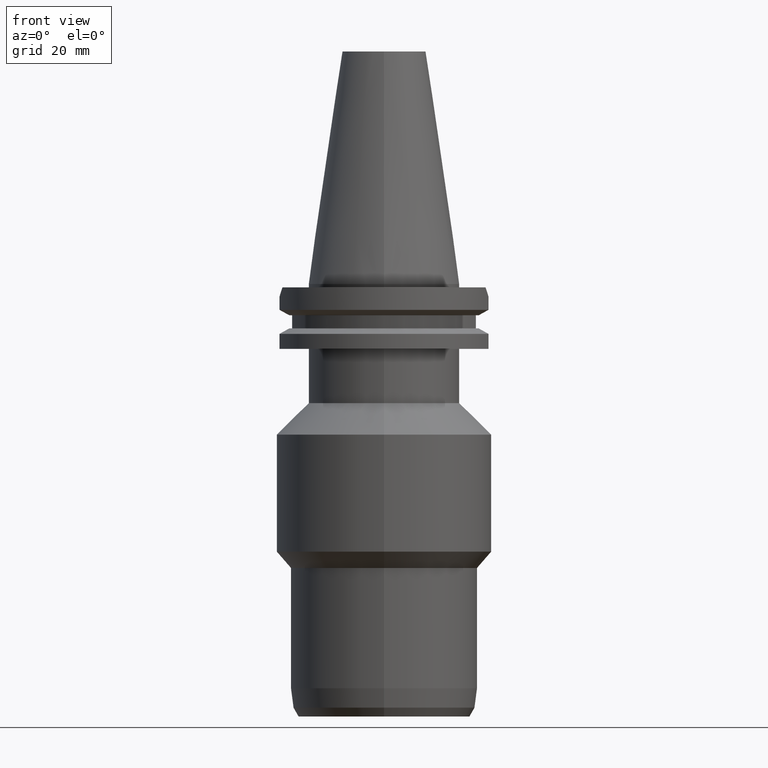
[diagram: clean part render]
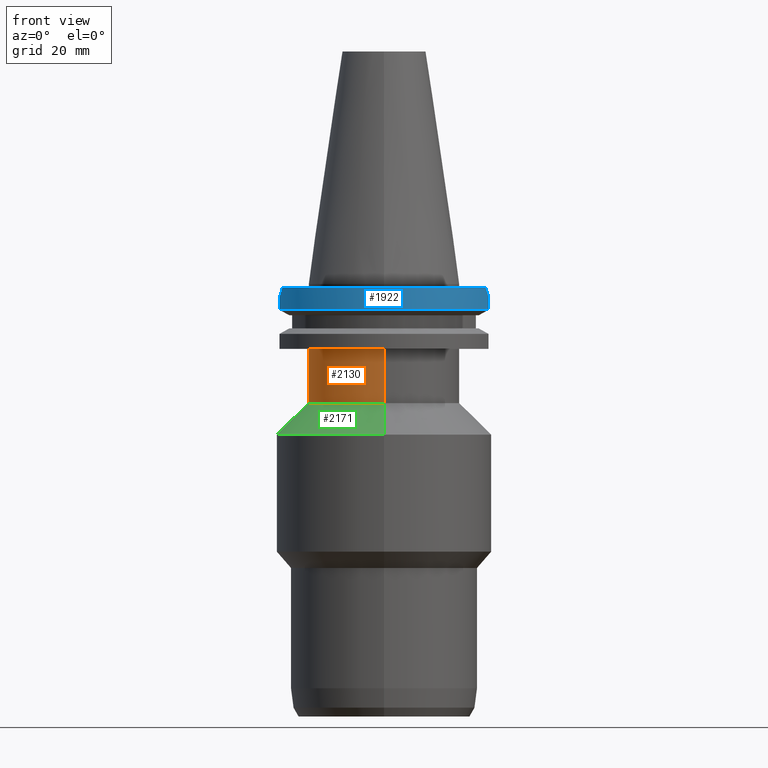
[diagram: same view with three faces highlighted in distinct colors, each labeled with its STEP entity id]
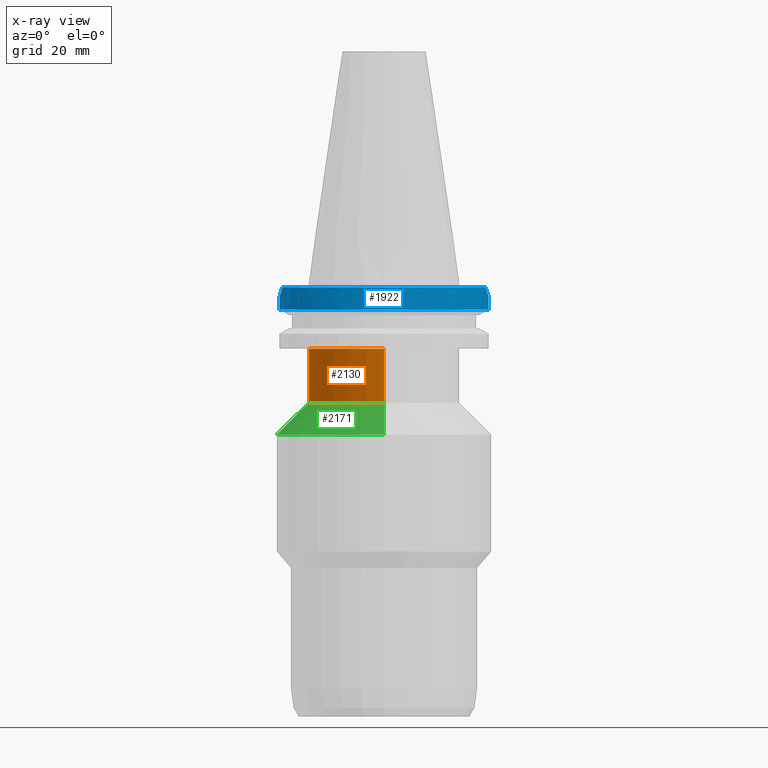
[diagram: x-ray of the same camera — body ghosted, the three highlighted faces saturated]
A machine part, front view with three faces highlighted in distinct colors.
The next image is the same camera in x-ray (body ghosted, the three faces saturated) — at least one of them is partly hidden behind the body in this view.
Their STEP definitions:

[orange] entity #2130 — the highlighted cylindrical surface (partial cylindrical patch) has radius 22.225 mm, axis along (0, 0, -1).
#251=CARTESIAN_POINT('',(0.E0,2.180024383332E-14,-1.905E1));
#252=DIRECTION('',(0.E0,0.E0,-1.E0));
#253=DIRECTION('',(0.E0,-1.E0,0.E0));
#254=AXIS2_PLACEMENT_3D('',#251,#252,#253);
#848=DIRECTION('',(0.E0,0.E0,-1.E0));
#849=VECTOR('',#848,1.595E1);
#850=CARTESIAN_POINT('',(0.E0,-2.2225E1,-1.905E1));
#851=LINE('',#850,#849);
#855=DIRECTION('',(0.E0,0.E0,-1.E0));
#856=VECTOR('',#855,1.595E1);
#857=CARTESIAN_POINT('',(0.E0,2.2225E1,-1.905E1));
#858=LINE('',#857,#856);
#885=CARTESIAN_POINT('',(0.E0,0.E0,-3.5E1));
#886=DIRECTION('',(0.E0,0.E0,1.E0));
#887=DIRECTION('',(0.E0,1.E0,0.E0));
#888=AXIS2_PLACEMENT_3D('',#885,#886,#887);
#1374=CARTESIAN_POINT('',(0.E0,2.2225E1,-3.5E1));
#1375=VERTEX_POINT('',#1374);
#1376=CARTESIAN_POINT('',(0.E0,-2.2225E1,-3.5E1));
#1377=VERTEX_POINT('',#1376);
#1378=CARTESIAN_POINT('',(0.E0,2.2225E1,-1.905E1));
#1379=VERTEX_POINT('',#1378);
#1380=CARTESIAN_POINT('',(0.E0,-2.2225E1,-1.905E1));
#1381=VERTEX_POINT('',#1380);
#2116=CARTESIAN_POINT('',(0.E0,2.180024383332E-14,7.80125E1));
#2117=DIRECTION('',(0.E0,0.E0,-1.E0));
#2118=DIRECTION('',(0.E0,-1.E0,0.E0));
#2119=AXIS2_PLACEMENT_3D('',#2116,#2117,#2118);
#2120=CYLINDRICAL_SURFACE('',#2119,2.2225E1);
#2122=ORIENTED_EDGE('',*,*,#2121,.F.);
#2123=ORIENTED_EDGE('',*,*,#1667,.F.);
#2125=ORIENTED_EDGE('',*,*,#2124,.T.);
#2127=ORIENTED_EDGE('',*,*,#2126,.F.);
#2128=EDGE_LOOP('',(#2122,#2123,#2125,#2127));
#2129=FACE_OUTER_BOUND('',#2128,.F.);
#255=CIRCLE('',#254,2.2225E1);
#889=CIRCLE('',#888,2.2225E1);
#1667=EDGE_CURVE('',#1381,#1379,#255,.T.);
#2121=EDGE_CURVE('',#1379,#1375,#858,.T.);
#2124=EDGE_CURVE('',#1381,#1377,#851,.T.);
#2126=EDGE_CURVE('',#1375,#1377,#889,.T.);
#2130=ADVANCED_FACE('',(#2129),#2120,.T.);

[blue] entity #1922 — the highlighted cylindrical surface (partial cylindrical patch) has radius 31.75 mm, axis along (0, 0, -1).
#108=CARTESIAN_POINT('',(0.E0,2.180024383332E-14,-9.999999999999E-1));
#109=DIRECTION('',(0.E0,0.E0,-1.E0));
#110=DIRECTION('',(9.393382785306E-1,-3.429921259843E-1,0.E0));
#111=AXIS2_PLACEMENT_3D('',#108,#109,#110);
#116=CARTESIAN_POINT('',(0.E0,2.180024383332E-14,-9.999999999999E-1));
#117=DIRECTION('',(0.E0,0.E0,-1.E0));
#118=DIRECTION('',(0.E0,-1.E0,0.E0));
#119=AXIS2_PLACEMENT_3D('',#116,#117,#118);
#575=CARTESIAN_POINT('',(2.982399034335E1,-1.089E1,-1.000000000001E0));
#576=CARTESIAN_POINT('',(3.015017741992E1,-9.996685011754E0,-1.893314988246E0));
#577=CARTESIAN_POINT('',(3.043345108244E1,-9.096596073173E0,-2.793403926827E0));
#578=CARTESIAN_POINT('',(3.067550162589E1,-8.19E0,-3.7E0));
#583=DIRECTION('',(-4.149952334243E-8,-1.554361652636E-7,-1.E0));
#584=VECTOR('',#583,3.901327811715E0);
#585=CARTESIAN_POINT('',(3.067550162589E1,-8.19E0,-3.7E0));
#586=LINE('',#585,#584);
#590=DIRECTION('',(8.604053470649E-9,-3.222588451522E-8,1.E0));
#591=VECTOR('',#590,3.901334354445E0);
#592=CARTESIAN_POINT('',(-3.067550165946E1,-8.189999874276E0,
-7.601334354445E0));
#593=LINE('',#592,#591);
#597=CARTESIAN_POINT('',(-3.067550162589E1,-8.19E0,-3.7E0));
#598=CARTESIAN_POINT('',(-3.043345108244E1,-9.096596073173E0,
-2.793403926827E0));
#599=CARTESIAN_POINT('',(-3.015017741992E1,-9.996685011754E0,
-1.893314988246E0));
#600=CARTESIAN_POINT('',(-2.982399034335E1,-1.089E1,-1.000000000001E0));
#624=CARTESIAN_POINT('',(3.067550146399E1,-8.190000606407E0,-7.601327811715E0));
#674=CARTESIAN_POINT('',(0.E0,1.121722380079E-14,-7.601333230926E0));
#675=DIRECTION('',(0.E0,0.E0,1.E0));
#676=DIRECTION('',(-9.661575315241E-1,-2.579527559055E-1,0.E0));
#677=AXIS2_PLACEMENT_3D('',#674,#675,#676);
#682=CARTESIAN_POINT('',(0.E0,1.121722380079E-14,-7.601333230926E0));
#683=DIRECTION('',(0.E0,0.E0,1.E0));
#684=DIRECTION('',(0.E0,-1.E0,0.E0));
#685=AXIS2_PLACEMENT_3D('',#682,#683,#684);
#1419=VERTEX_POINT('',#624);
#1420=CARTESIAN_POINT('',(3.067550162589E1,-8.19E0,-3.7E0));
#1421=VERTEX_POINT('',#1420);
#1434=CARTESIAN_POINT('',(-3.067550162589E1,-8.19E0,-3.7E0));
#1435=VERTEX_POINT('',#1434);
#1436=CARTESIAN_POINT('',(-3.067550165946E1,-8.189999874276E0,
-7.601334354445E0));
#1437=VERTEX_POINT('',#1436);
#1488=CARTESIAN_POINT('',(0.E0,-3.175E1,-7.601333230926E0));
#1489=VERTEX_POINT('',#1488);
#1493=VERTEX_POINT('',#575);
#1494=VERTEX_POINT('',#600);
#1495=CARTESIAN_POINT('',(-1.432899828923E-14,-3.175E1,-9.999999999999E-1));
#1496=VERTEX_POINT('',#1495);
#1902=CARTESIAN_POINT('',(0.E0,2.180024383332E-14,7.80125E1));
#1903=DIRECTION('',(0.E0,0.E0,-1.E0));
#1904=DIRECTION('',(0.E0,-1.E0,0.E0));
#1905=AXIS2_PLACEMENT_3D('',#1902,#1903,#1904);
#1906=CYLINDRICAL_SURFACE('',#1905,3.175E1);
#1908=ORIENTED_EDGE('',*,*,#1907,.T.);
#1910=ORIENTED_EDGE('',*,*,#1909,.T.);
#1912=ORIENTED_EDGE('',*,*,#1911,.F.);
#1914=ORIENTED_EDGE('',*,*,#1913,.F.);
#1916=ORIENTED_EDGE('',*,*,#1915,.T.);
#1917=ORIENTED_EDGE('',*,*,#1894,.T.);
#1918=ORIENTED_EDGE('',*,*,#1601,.F.);
#1919=ORIENTED_EDGE('',*,*,#1599,.F.);
#1920=EDGE_LOOP('',(#1908,#1910,#1912,#1914,#1916,#1917,#1918,#1919));
#1921=FACE_OUTER_BOUND('',#1920,.F.);
#112=CIRCLE('',#111,3.175E1);
#120=CIRCLE('',#119,3.175E1);
#579=B_SPLINE_CURVE_WITH_KNOTS('',3,(#575,#576,#577,#578),.UNSPECIFIED.,.F.,.F.,
(4,4),(0.E0,1.E0),.UNSPECIFIED.);
#601=B_SPLINE_CURVE_WITH_KNOTS('',3,(#597,#598,#599,#600),.UNSPECIFIED.,.F.,.F.,
(4,4),(0.E0,1.E0),.UNSPECIFIED.);
#678=CIRCLE('',#677,3.175E1);
#686=CIRCLE('',#685,3.175E1);
#1599=EDGE_CURVE('',#1493,#1496,#112,.T.);
#1601=EDGE_CURVE('',#1496,#1494,#120,.T.);
#1894=EDGE_CURVE('',#1435,#1494,#601,.T.);
#1907=EDGE_CURVE('',#1493,#1421,#579,.T.);
#1909=EDGE_CURVE('',#1421,#1419,#586,.T.);
#1911=EDGE_CURVE('',#1489,#1419,#686,.T.);
#1913=EDGE_CURVE('',#1437,#1489,#678,.T.);
#1915=EDGE_CURVE('',#1437,#1435,#593,.T.);
#1922=ADVANCED_FACE('',(#1921),#1906,.T.);

[green] entity #2171 — the highlighted conical surface has half-angle 45 deg.
#862=DIRECTION('',(0.E0,7.071067811865E-1,-7.071067811866E-1));
#863=VECTOR('',#862,1.304612011289E1);
#864=CARTESIAN_POINT('',(0.E0,2.2225E1,-3.5E1));
#865=LINE('',#864,#863);
#885=CARTESIAN_POINT('',(0.E0,0.E0,-3.5E1));
#886=DIRECTION('',(0.E0,0.E0,1.E0));
#887=DIRECTION('',(0.E0,1.E0,0.E0));
#888=AXIS2_PLACEMENT_3D('',#885,#886,#887);
#893=DIRECTION('',(0.E0,-7.071067811865E-1,-7.071067811866E-1));
#894=VECTOR('',#893,1.304612011289E1);
#895=CARTESIAN_POINT('',(0.E0,-2.2225E1,-3.5E1));
#896=LINE('',#895,#894);
#900=CARTESIAN_POINT('',(0.E0,0.E0,-4.4225E1));
#901=DIRECTION('',(0.E0,0.E0,-1.E0));
#902=DIRECTION('',(0.E0,-1.E0,0.E0));
#903=AXIS2_PLACEMENT_3D('',#900,#901,#902);
#1370=CARTESIAN_POINT('',(0.E0,3.145E1,-4.4225E1));
#1371=VERTEX_POINT('',#1370);
#1372=CARTESIAN_POINT('',(0.E0,-3.145E1,-4.4225E1));
#1373=VERTEX_POINT('',#1372);
#1374=CARTESIAN_POINT('',(0.E0,2.2225E1,-3.5E1));
#1375=VERTEX_POINT('',#1374);
#1376=CARTESIAN_POINT('',(0.E0,-2.2225E1,-3.5E1));
#1377=VERTEX_POINT('',#1376);
#2159=CARTESIAN_POINT('',(0.E0,0.E0,-3.96125E1));
#2160=DIRECTION('',(0.E0,0.E0,-1.E0));
#2161=DIRECTION('',(0.E0,-1.E0,0.E0));
#2162=AXIS2_PLACEMENT_3D('',#2159,#2160,#2161);
#2163=CONICAL_SURFACE('',#2162,2.68375E1,4.5E1);
#2164=ORIENTED_EDGE('',*,*,#2149,.F.);
#2165=ORIENTED_EDGE('',*,*,#2126,.T.);
#2166=ORIENTED_EDGE('',*,*,#2153,.T.);
#2168=ORIENTED_EDGE('',*,*,#2167,.T.);
#2169=EDGE_LOOP('',(#2164,#2165,#2166,#2168));
#2170=FACE_OUTER_BOUND('',#2169,.F.);
#889=CIRCLE('',#888,2.2225E1);
#904=CIRCLE('',#903,3.145E1);
#2126=EDGE_CURVE('',#1375,#1377,#889,.T.);
#2149=EDGE_CURVE('',#1375,#1371,#865,.T.);
#2153=EDGE_CURVE('',#1377,#1373,#896,.T.);
#2167=EDGE_CURVE('',#1373,#1371,#904,.T.);
#2171=ADVANCED_FACE('',(#2170),#2163,.T.);